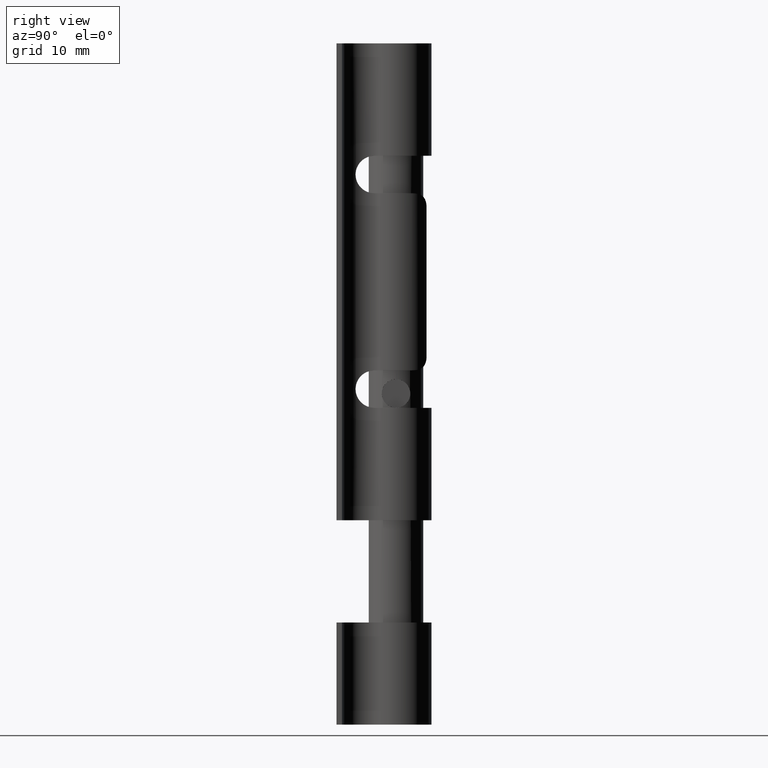
[diagram: clean part render]
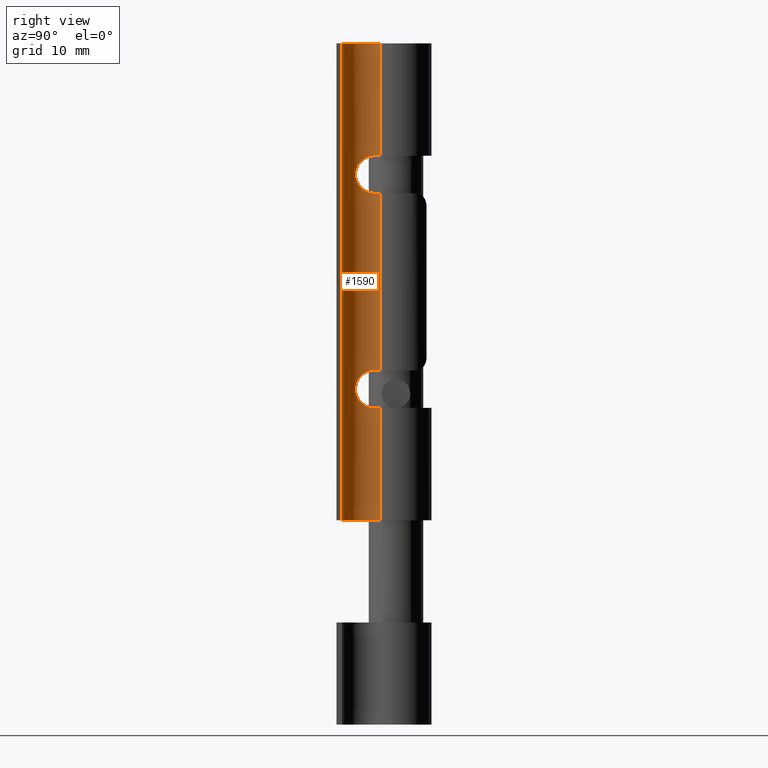
[diagram: same view with one face highlighted and labeled with its STEP entity id]
A machine part, right view. The second image highlights one B-rep face of the part: STEP entity #1590.
In plain terms, the highlighted cylindrical surface (edge-blend (fillet) strip) has radius 3.892 mm, axis along (-0, -0, -1).
Its self-contained STEP definition (entity closure, byte-faithful):
#70 = EDGE_CURVE ( 'NONE', #377, #1581, #15071, .T. ) ;
#81 = CARTESIAN_POINT ( 'NONE',  ( 8.192006389780432940, 4.692006389780432052, -12.99999999999999822 ) ) ;
#109 = CARTESIAN_POINT ( 'NONE',  ( 4.648508748623621400, 3.080433907158461881, 16.97302439188879220 ) ) ;
#163 = CARTESIAN_POINT ( 'NONE',  ( 4.742149599950213457, 2.889831864452028665, 15.02995716499419210 ) ) ;
#212 = VERTEX_POINT ( 'NONE', #12349 ) ;
#216 = LINE ( 'NONE', #14268, #10442 ) ;
#271 = CARTESIAN_POINT ( 'NONE',  ( 4.532494096455495836, 3.362702031103013578, -14.07366824412828521 ) ) ;
#367 = CARTESIAN_POINT ( 'NONE',  ( 4.704441422664571881, 6.419607135970900380, 13.00000000000000000 ) ) ;
#372 = CARTESIAN_POINT ( 'NONE',  ( 8.192006389780432940, 0.7999999999999990452, 35.00000000000000000 ) ) ;
#377 = VERTEX_POINT ( 'NONE', #2017 ) ;
#488 = DIRECTION ( 'NONE',  ( -0.000000000000000000, -0.000000000000000000, -1.000000000000000000 ) ) ;
#517 = CARTESIAN_POINT ( 'NONE',  ( 4.704441422664571881, 6.419607135970900380, -35.00000000000000000 ) ) ;
#822 = EDGE_CURVE ( 'NONE', #212, #12686, #216, .T. ) ;
#826 = VECTOR ( 'NONE', #8540, 1000.000000000000000 ) ;
#879 = AXIS2_PLACEMENT_3D ( 'NONE', #81, #14403, #3584 ) ;
#908 = CARTESIAN_POINT ( 'NONE',  ( 4.648141188764519427, 3.081217284370008525, -16.97476887366138953 ) ) ;
#1131 = CARTESIAN_POINT ( 'NONE',  ( 4.532494096455498500, 3.362702031103007805, 17.42633175587170768 ) ) ;
#1294 = CARTESIAN_POINT ( 'NONE',  ( 4.296580586082395570, 4.657582444082602358, 18.35742396054497760 ) ) ;
#1352 = CARTESIAN_POINT ( 'NONE',  ( 4.780493624143155706, 2.818263750820188207, -15.38586028161276964 ) ) ;
#1454 = CARTESIAN_POINT ( 'NONE',  ( 4.419338804790838182, 3.726759056953514726, -13.68365854813985649 ) ) ;
#1545 = CARTESIAN_POINT ( 'NONE',  ( 4.395750246826682250, 5.550000000000011369, -12.99999999999999822 ) ) ;
#1581 = VERTEX_POINT ( 'NONE', #14471 ) ;
#1590 = ADVANCED_FACE ( 'NONE', ( #5189 ), #2771, .F. ) ;
#1595 = CARTESIAN_POINT ( 'NONE',  ( 4.296580586082395570, 4.657582444082607687, -13.14257603945502062 ) ) ;
#1750 = ORIENTED_EDGE ( 'NONE', *, *, #822, .F. ) ;
#2017 = CARTESIAN_POINT ( 'NONE',  ( 4.395750246826682250, 5.550000000000011369, -12.99999999999999822 ) ) ;
#2076 = ORIENTED_EDGE ( 'NONE', *, *, #10069, .T. ) ;
#2262 = VERTEX_POINT ( 'NONE', #12047 ) ;
#2268 = CARTESIAN_POINT ( 'NONE',  ( 4.355245130862329006, 5.370782120671772297, 12.99999999999999822 ) ) ;
#2289 = LINE ( 'NONE', #14210, #3955 ) ;
#2317 = CARTESIAN_POINT ( 'NONE',  ( 4.419338804790839959, 3.726759056953507621, 17.81634145186014351 ) ) ;
#2373 = VERTEX_POINT ( 'NONE', #372 ) ;
#2425 = ORIENTED_EDGE ( 'NONE', *, *, #14402, .T. ) ;
#2426 = CARTESIAN_POINT ( 'NONE',  ( 4.298516473094553092, 4.834943057535238786, 18.41161888214986675 ) ) ;
#2478 = CARTESIAN_POINT ( 'NONE',  ( 4.610754948063201297, 3.164355116029326620, 17.12951406229490203 ) ) ;
#2539 = CARTESIAN_POINT ( 'NONE',  ( 4.610754948063198633, 3.164355116029333281, -14.37048593770509086 ) ) ;
#2641 = CARTESIAN_POINT ( 'NONE',  ( 4.385785642324782074, 3.865123448050653998, -13.56904694487949037 ) ) ;
#2676 = CARTESIAN_POINT ( 'NONE',  ( 4.532778879495658053, 3.361988499396439511, 14.07475758335755955 ) ) ;
#2771 = CYLINDRICAL_SURFACE ( 'NONE', #11433, 3.892006389780433562 ) ;
#2788 = EDGE_CURVE ( 'NONE', #212, #6217, #10410, .T. ) ;
#3032 = DIRECTION ( 'NONE',  ( -0.000000000000000000, -4.003208021484937059E-16, 1.000000000000000000 ) ) ;
#3275 = CARTESIAN_POINT ( 'NONE',  ( 4.328199048717781494, 5.192387823474294173, -18.48263748640717452 ) ) ;
#3403 = CARTESIAN_POINT ( 'NONE',  ( 4.790826365271035669, 2.800000000000007372, 15.74999999999999645 ) ) ;
#3447 = DIRECTION ( 'NONE',  ( -0.000000000000000000, -0.000000000000000000, -1.000000000000000000 ) ) ;
#3464 = CARTESIAN_POINT ( 'NONE',  ( 4.328030025462386909, 5.191387284804442004, 18.48256627097749316 ) ) ;
#3491 = DIRECTION ( 'NONE',  ( -0.000000000000000000, -0.000000000000000000, -1.000000000000000000 ) ) ;
#3565 = CARTESIAN_POINT ( 'NONE',  ( 4.298656686812078576, 4.837666399499645387, 13.08771246058668325 ) ) ;
#3584 = DIRECTION ( 'NONE',  ( 1.000000000000000000, 0.000000000000000000, 0.000000000000000000 ) ) ;
#3617 = CARTESIAN_POINT ( 'NONE',  ( 4.313657631693708971, 4.325721144385834549, 13.28089964330177253 ) ) ;
#3673 = CARTESIAN_POINT ( 'NONE',  ( 4.313804280126115387, 4.324480068509847897, 18.21843466627213459 ) ) ;
#3802 = DIRECTION ( 'NONE',  ( -0.000000000000000000, -0.000000000000000000, -1.000000000000000000 ) ) ;
#3831 = CARTESIAN_POINT ( 'NONE',  ( 4.332682776943115321, 4.166009213854701798, -13.36673863627735415 ) ) ;
#3865 = AXIS2_PLACEMENT_3D ( 'NONE', #11461, #3491, #14109 ) ;
#3955 = VECTOR ( 'NONE', #3802, 1000.000000000000000 ) ;
#4162 = ORIENTED_EDGE ( 'NONE', *, *, #7186, .T. ) ;
#4220 = B_SPLINE_CURVE_WITH_KNOTS ( 'NONE', 3,
 ( #12044, #10808, #1352, #6183, #10962, #7366, #2539, #271, #8364, #1454, #2641, #3831, #6335, #1595, #12398, #12192, #6440, #1545 ),
 .UNSPECIFIED., .F., .F.,
 ( 4, 2, 2, 2, 2, 2, 2, 2, 4 ),
 ( 0.000000000000000000, 0.0005431114426958852512, 0.001086222885391770502, 0.001629334328087655645, 0.002172445770783541005, 0.002715557213479426364, 0.003258668656175310423, 0.003801780098871194915, 0.004344891541567079407 ),
 .UNSPECIFIED. ) ;
#4231 = AXIS2_PLACEMENT_3D ( 'NONE', #6743, #5681, #4530 ) ;
#4341 = CIRCLE ( 'NONE', #13413, 3.892006389780433562 ) ;
#4356 = EDGE_CURVE ( 'NONE', #12269, #377, #4220, .T. ) ;
#4522 = CARTESIAN_POINT ( 'NONE',  ( 4.790826365271030340, 2.800000000000011369, -15.75000000000000000 ) ) ;
#4530 = DIRECTION ( 'NONE',  ( -1.782857788241885370E-15, -1.000000000000000000, -8.914288941209426849E-16 ) ) ;
#4556 = CARTESIAN_POINT ( 'NONE',  ( 4.790826365271035669, 2.800000000000007372, 15.74999999999999645 ) ) ;
#4652 = B_SPLINE_CURVE_WITH_KNOTS ( 'NONE', 3,
 ( #4556, #9349, #15133, #8039, #9453, #109, #2478, #1131, #4760, #2317, #9611, #8293, #3673, #1294, #2426, #3464, #7114, #8403 ),
 .UNSPECIFIED., .F., .F.,
 ( 4, 2, 2, 2, 2, 2, 2, 2, 4 ),
 ( 0.000000000000000000, 0.0005431114426958847091, 0.001086222885391769418, 0.001629334328087654127, 0.002172445770783538836, 0.002715557213479423762, 0.003258668656175308254, 0.003801780098871192747, 0.004344891541567077672 ),
 .UNSPECIFIED. ) ;
#4760 = CARTESIAN_POINT ( 'NONE',  ( 4.492419731104908109, 3.476365951447295100, 17.56494252381706289 ) ) ;
#4812 = CARTESIAN_POINT ( 'NONE',  ( 4.419104291213908908, 3.727591096116293468, 13.68285283498943095 ) ) ;
#4841 = CARTESIAN_POINT ( 'NONE',  ( 4.704441422664571881, 6.419607135970900380, 35.00000000000000000 ) ) ;
#4958 = CARTESIAN_POINT ( 'NONE',  ( 8.192006389780432940, 4.692006389780432052, -18.49999999999999645 ) ) ;
#5189 = FACE_OUTER_BOUND ( 'NONE', #9580, .T. ) ;
#5298 = VECTOR ( 'NONE', #7333, 1000.000000000000000 ) ;
#5454 = CIRCLE ( 'NONE', #3865, 3.892006389780433562 ) ;
#5624 = CARTESIAN_POINT ( 'NONE',  ( 4.298656686812079464, 4.837666399499648939, -18.41228753941330964 ) ) ;
#5670 = CARTESIAN_POINT ( 'NONE',  ( 4.296529331669399099, 4.660187211959050835, -18.35836126523723522 ) ) ;
#5681 = DIRECTION ( 'NONE',  ( -0.000000000000000000, 5.337610695313251385E-16, -1.000000000000000000 ) ) ;
#5844 = ORIENTED_EDGE ( 'NONE', *, *, #2788, .T. ) ;
#6174 = CARTESIAN_POINT ( 'NONE',  ( 4.780290964697938350, 2.818629025677169775, 15.38316380460112498 ) ) ;
#6183 = CARTESIAN_POINT ( 'NONE',  ( 4.742506246390998825, 2.889153209979017589, -15.03245207154842333 ) ) ;
#6217 = VERTEX_POINT ( 'NONE', #14148 ) ;
#6328 = CARTESIAN_POINT ( 'NONE',  ( 4.790826365271035669, 2.800000000000007372, 15.74999999999999645 ) ) ;
#6335 = CARTESIAN_POINT ( 'NONE',  ( 4.313804280126113611, 4.324480068509852337, -13.28156533372786718 ) ) ;
#6401 = VERTEX_POINT ( 'NONE', #9247 ) ;
#6440 = CARTESIAN_POINT ( 'NONE',  ( 4.355160145203719857, 5.370406095343946973, -13.00000000000000000 ) ) ;
#6743 = CARTESIAN_POINT ( 'NONE',  ( 8.192006389780432940, 4.692006389780432052, 18.49999999999999645 ) ) ;
#6988 = CARTESIAN_POINT ( 'NONE',  ( 4.742149599950210792, 2.889831864452033994, -16.47004283500580613 ) ) ;
#7114 = CARTESIAN_POINT ( 'NONE',  ( 4.355160145203717192, 5.370406095343938091, 18.49999999999999645 ) ) ;
#7186 = EDGE_CURVE ( 'NONE', #6217, #12269, #10652, .T. ) ;
#7218 = ORIENTED_EDGE ( 'NONE', *, *, #12081, .F. ) ;
#7333 = DIRECTION ( 'NONE',  ( -0.000000000000000000, -0.000000000000000000, -1.000000000000000000 ) ) ;
#7366 = CARTESIAN_POINT ( 'NONE',  ( 4.648508748623618736, 3.080433907158466322, -14.52697560811120780 ) ) ;
#7960 = CARTESIAN_POINT ( 'NONE',  ( 4.714505030239229733, 2.942547502161302120, -16.64226585858583718 ) ) ;
#8008 = CARTESIAN_POINT ( 'NONE',  ( 4.419104291213909796, 3.727591096116298353, -17.81714716501057083 ) ) ;
#8039 = CARTESIAN_POINT ( 'NONE',  ( 4.742506246391000602, 2.889153209979011372, 16.46754792845156956 ) ) ;
#8053 = CARTESIAN_POINT ( 'NONE',  ( 4.492521313729572974, 3.475989417819132399, -17.56459409228830282 ) ) ;
#8098 = ORIENTED_EDGE ( 'NONE', *, *, #14524, .F. ) ;
#8241 = CARTESIAN_POINT ( 'NONE',  ( 4.328199048717781494, 5.192387823474289732, 13.01736251359281837 ) ) ;
#8293 = CARTESIAN_POINT ( 'NONE',  ( 4.332682776943116210, 4.166009213854695581, 18.13326136372263520 ) ) ;
#8364 = CARTESIAN_POINT ( 'NONE',  ( 4.492419731104905445, 3.476365951447301317, -13.93505747618293356 ) ) ;
#8403 = CARTESIAN_POINT ( 'NONE',  ( 4.395750246826681362, 5.550000000000005151, 18.49999999999999645 ) ) ;
#8426 = LINE ( 'NONE', #4841, #826 ) ;
#8455 = EDGE_CURVE ( 'NONE', #10896, #6401, #4652, .T. ) ;
#8518 = EDGE_CURVE ( 'NONE', #2262, #10896, #11047, .T. ) ;
#8540 = DIRECTION ( 'NONE',  ( -0.000000000000000000, -0.000000000000000000, -1.000000000000000000 ) ) ;
#8545 = DIRECTION ( 'NONE',  ( -0.000000000000000000, -0.000000000000000000, -1.000000000000000000 ) ) ;
#8681 = EDGE_CURVE ( 'NONE', #15271, #2262, #14666, .T. ) ;
#8840 = ORIENTED_EDGE ( 'NONE', *, *, #4356, .T. ) ;
#9148 = CARTESIAN_POINT ( 'NONE',  ( 4.790826365271030340, 2.800000000000011369, -15.75000000000000000 ) ) ;
#9211 = CARTESIAN_POINT ( 'NONE',  ( 4.532778879495657165, 3.361988499396443952, -17.42524241664244400 ) ) ;
#9247 = CARTESIAN_POINT ( 'NONE',  ( 4.395750246826681362, 5.550000000000005151, 18.49999999999999645 ) ) ;
#9349 = CARTESIAN_POINT ( 'NONE',  ( 4.790826365271035669, 2.800000000000006928, 15.93396314574128958 ) ) ;
#9453 = CARTESIAN_POINT ( 'NONE',  ( 4.714429760718752860, 2.942720195748067535, 16.64254544556989757 ) ) ;
#9534 = VERTEX_POINT ( 'NONE', #10502 ) ;
#9559 = CARTESIAN_POINT ( 'NONE',  ( 4.296529331669399099, 4.660187211959048170, 13.14163873476275413 ) ) ;
#9580 = EDGE_LOOP ( 'NONE', ( #8098, #14763, #11382, #13595, #2076, #7218, #11276, #10311, #2425, #1750, #5844, #4162, #8840, #15111 ) ) ;
#9611 = CARTESIAN_POINT ( 'NONE',  ( 4.385785642324786515, 3.865123448050650445, 17.93095305512050430 ) ) ;
#9714 = CARTESIAN_POINT ( 'NONE',  ( 4.610388573667997925, 3.165275444239475711, 14.36908715899799915 ) ) ;
#9745 = DIRECTION ( 'NONE',  ( -1.000000000000000000, 0.000000000000000000, 0.000000000000000000 ) ) ;
#10069 = EDGE_CURVE ( 'NONE', #6401, #11195, #11106, .T. ) ;
#10311 = ORIENTED_EDGE ( 'NONE', *, *, #14534, .T. ) ;
#10355 = LINE ( 'NONE', #12156, #5298 ) ;
#10410 = CIRCLE ( 'NONE', #12315, 3.892006389780433562 ) ;
#10421 = CARTESIAN_POINT ( 'NONE',  ( 4.385805222277294746, 3.865080862443555532, -17.93089588567125858 ) ) ;
#10442 = VECTOR ( 'NONE', #3447, 1000.000000000000000 ) ;
#10502 = CARTESIAN_POINT ( 'NONE',  ( 8.192006389780432940, 0.7999999999999990452, -35.00000000000000000 ) ) ;
#10517 = CARTESIAN_POINT ( 'NONE',  ( 4.313657631693709860, 4.325721144385838990, -18.21910035669823102 ) ) ;
#10607 = CARTESIAN_POINT ( 'NONE',  ( 4.492521313729572974, 3.475989417819127070, 13.93540590771170429 ) ) ;
#10652 = B_SPLINE_CURVE_WITH_KNOTS ( 'NONE', 3,
 ( #13989, #14040, #3275, #5624, #5670, #10517, #14093, #10421, #8008, #8053, #9211, #11698, #908, #7960, #6988, #15200, #12748, #4522 ),
 .UNSPECIFIED., .F., .F.,
 ( 4, 2, 2, 2, 2, 2, 2, 2, 4 ),
 ( 0.000000000000000000, 0.0005430407401495037029, 0.001086081480299007406, 0.001629122220448511000, 0.002172162960598013511, 0.002715203700747516238, 0.003258244440897018965, 0.003801285181046521692, 0.004344325921196024419 ),
 .UNSPECIFIED. ) ;
#10808 = CARTESIAN_POINT ( 'NONE',  ( 4.790826365271028564, 2.800000000000010925, -15.56603685425870864 ) ) ;
#10896 = VERTEX_POINT ( 'NONE', #3403 ) ;
#10962 = CARTESIAN_POINT ( 'NONE',  ( 4.714429760718750195, 2.942720195748070200, -14.85745455443009533 ) ) ;
#11047 = B_SPLINE_CURVE_WITH_KNOTS ( 'NONE', 3,
 ( #14078, #2268, #8241, #3565, #9559, #3617, #13130, #11944, #4812, #10607, #2676, #9714, #14578, #13281, #163, #6174, #12136, #6328 ),
 .UNSPECIFIED., .F., .F.,
 ( 4, 2, 2, 2, 2, 2, 2, 2, 4 ),
 ( 0.000000000000000000, 0.0005430407401495038113, 0.001086081480299007623, 0.001629122220448511434, 0.002172162960598015245, 0.002715203700747519273, 0.003258244440897022868, 0.003801285181046526462, 0.004344325921196030491 ),
 .UNSPECIFIED. ) ;
#11074 = CARTESIAN_POINT ( 'NONE',  ( 8.192006389780432940, 4.692006389780432052, 35.00000000000000000 ) ) ;
#11106 = CIRCLE ( 'NONE', #4231, 3.892006389780433562 ) ;
#11183 = DIRECTION ( 'NONE',  ( 1.000000000000000000, 0.000000000000000000, 0.000000000000000000 ) ) ;
#11195 = VERTEX_POINT ( 'NONE', #13795 ) ;
#11276 = ORIENTED_EDGE ( 'NONE', *, *, #14792, .F. ) ;
#11382 = ORIENTED_EDGE ( 'NONE', *, *, #8518, .T. ) ;
#11420 = DIRECTION ( 'NONE',  ( 1.782857788241885370E-15, 1.000000000000000000, 4.457144470604713424E-16 ) ) ;
#11433 = AXIS2_PLACEMENT_3D ( 'NONE', #13403, #8545, #9745 ) ;
#11461 = CARTESIAN_POINT ( 'NONE',  ( 8.192006389780432940, 4.692006389780432052, -35.00000000000000000 ) ) ;
#11698 = CARTESIAN_POINT ( 'NONE',  ( 4.610388573667996148, 3.165275444239482816, -17.13091284100199729 ) ) ;
#11879 = AXIS2_PLACEMENT_3D ( 'NONE', #14945, #3032, #11420 ) ;
#11944 = CARTESIAN_POINT ( 'NONE',  ( 4.385805222277294746, 3.865080862443548426, 13.56910411432874497 ) ) ;
#12044 = CARTESIAN_POINT ( 'NONE',  ( 4.790826365271030340, 2.800000000000011369, -15.75000000000000000 ) ) ;
#12047 = CARTESIAN_POINT ( 'NONE',  ( 4.395750246826681362, 5.550000000000006928, 12.99999999999999822 ) ) ;
#12081 = EDGE_CURVE ( 'NONE', #14919, #11195, #10355, .T. ) ;
#12136 = CARTESIAN_POINT ( 'NONE',  ( 4.790826365271033893, 2.800000000000006484, 15.56628288302752239 ) ) ;
#12156 = CARTESIAN_POINT ( 'NONE',  ( 4.704441422664571881, 6.419607135970900380, 35.00000000000000000 ) ) ;
#12192 = CARTESIAN_POINT ( 'NONE',  ( 4.328030025462391350, 5.191387284804449109, -13.01743372902251039 ) ) ;
#12269 = VERTEX_POINT ( 'NONE', #9148 ) ;
#12315 = AXIS2_PLACEMENT_3D ( 'NONE', #4958, #13278, #14436 ) ;
#12349 = CARTESIAN_POINT ( 'NONE',  ( 4.704441422664571881, 6.419607135970900380, -18.49999999999999645 ) ) ;
#12398 = CARTESIAN_POINT ( 'NONE',  ( 4.298516473094553980, 4.834943057535246780, -13.08838111785013503 ) ) ;
#12686 = VERTEX_POINT ( 'NONE', #517 ) ;
#12748 = CARTESIAN_POINT ( 'NONE',  ( 4.790826365271033005, 2.800000000000012257, -15.93371711697247761 ) ) ;
#13130 = CARTESIAN_POINT ( 'NONE',  ( 4.332768504278013744, 4.165455254213858538, 13.36708262603216291 ) ) ;
#13278 = DIRECTION ( 'NONE',  ( 0.000000000000000000, 5.337610695313251385E-16, 1.000000000000000000 ) ) ;
#13281 = CARTESIAN_POINT ( 'NONE',  ( 4.714505030239234173, 2.942547502161295458, 14.85773414141415749 ) ) ;
#13403 = CARTESIAN_POINT ( 'NONE',  ( 8.192006389780432940, 4.692006389780432052, 35.00000000000000000 ) ) ;
#13413 = AXIS2_PLACEMENT_3D ( 'NONE', #11074, #488, #11183 ) ;
#13595 = ORIENTED_EDGE ( 'NONE', *, *, #8455, .T. ) ;
#13670 = CARTESIAN_POINT ( 'NONE',  ( 4.704441422664571881, 6.419607135970900380, 35.00000000000000000 ) ) ;
#13795 = CARTESIAN_POINT ( 'NONE',  ( 4.704441422664571881, 6.419607135970900380, 18.50000000000000000 ) ) ;
#13989 = CARTESIAN_POINT ( 'NONE',  ( 4.395750246826681362, 5.550000000000009592, -18.49999999999999645 ) ) ;
#14040 = CARTESIAN_POINT ( 'NONE',  ( 4.355245130862329894, 5.370782120671777626, -18.50000000000000000 ) ) ;
#14078 = CARTESIAN_POINT ( 'NONE',  ( 4.395750246826681362, 5.550000000000006928, 12.99999999999999822 ) ) ;
#14093 = CARTESIAN_POINT ( 'NONE',  ( 4.332768504278013744, 4.165455254213866532, -18.13291737396783532 ) ) ;
#14109 = DIRECTION ( 'NONE',  ( 1.000000000000000000, 0.000000000000000000, 0.000000000000000000 ) ) ;
#14148 = CARTESIAN_POINT ( 'NONE',  ( 4.395750246826681362, 5.550000000000009592, -18.49999999999999645 ) ) ;
#14210 = CARTESIAN_POINT ( 'NONE',  ( 8.192006389780432940, 0.7999999999999990452, 35.00000000000000000 ) ) ;
#14268 = CARTESIAN_POINT ( 'NONE',  ( 4.704441422664571881, 6.419607135970900380, 35.00000000000000000 ) ) ;
#14402 = EDGE_CURVE ( 'NONE', #9534, #12686, #5454, .T. ) ;
#14403 = DIRECTION ( 'NONE',  ( -0.000000000000000000, -0.000000000000000000, -1.000000000000000000 ) ) ;
#14436 = DIRECTION ( 'NONE',  ( 1.782857788241885370E-15, 1.000000000000000000, -8.914288941209426849E-16 ) ) ;
#14471 = CARTESIAN_POINT ( 'NONE',  ( 4.704441422664571881, 6.419607135970900380, -12.99999999999999822 ) ) ;
#14524 = EDGE_CURVE ( 'NONE', #15271, #1581, #8426, .T. ) ;
#14534 = EDGE_CURVE ( 'NONE', #2373, #9534, #2289, .T. ) ;
#14578 = CARTESIAN_POINT ( 'NONE',  ( 4.648141188764522092, 3.081217284370002751, 14.52523112633860336 ) ) ;
#14666 = CIRCLE ( 'NONE', #11879, 3.892006389780433562 ) ;
#14763 = ORIENTED_EDGE ( 'NONE', *, *, #8681, .T. ) ;
#14792 = EDGE_CURVE ( 'NONE', #2373, #14919, #4341, .T. ) ;
#14919 = VERTEX_POINT ( 'NONE', #13670 ) ;
#14945 = CARTESIAN_POINT ( 'NONE',  ( 8.192006389780432940, 4.692006389780432052, 12.99999999999999822 ) ) ;
#15071 = CIRCLE ( 'NONE', #879, 3.892006389780433562 ) ;
#15111 = ORIENTED_EDGE ( 'NONE', *, *, #70, .T. ) ;
#15133 = CARTESIAN_POINT ( 'NONE',  ( 4.780493624143161036, 2.818263750820183766, 16.11413971838722503 ) ) ;
#15200 = CARTESIAN_POINT ( 'NONE',  ( 4.780290964697935685, 2.818629025677175104, -16.11683619539887857 ) ) ;
#15271 = VERTEX_POINT ( 'NONE', #367 ) ;